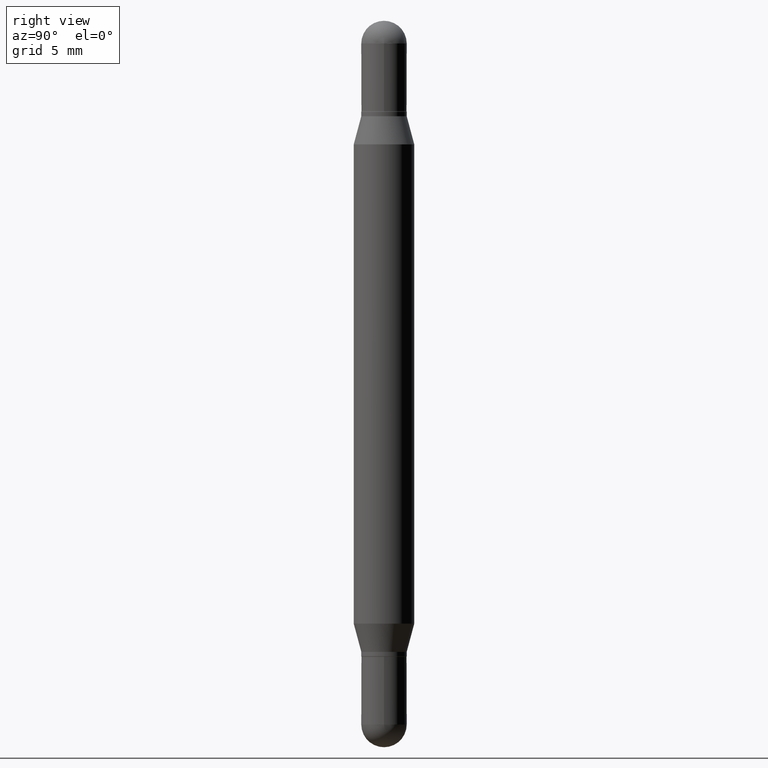
[diagram: clean part render]
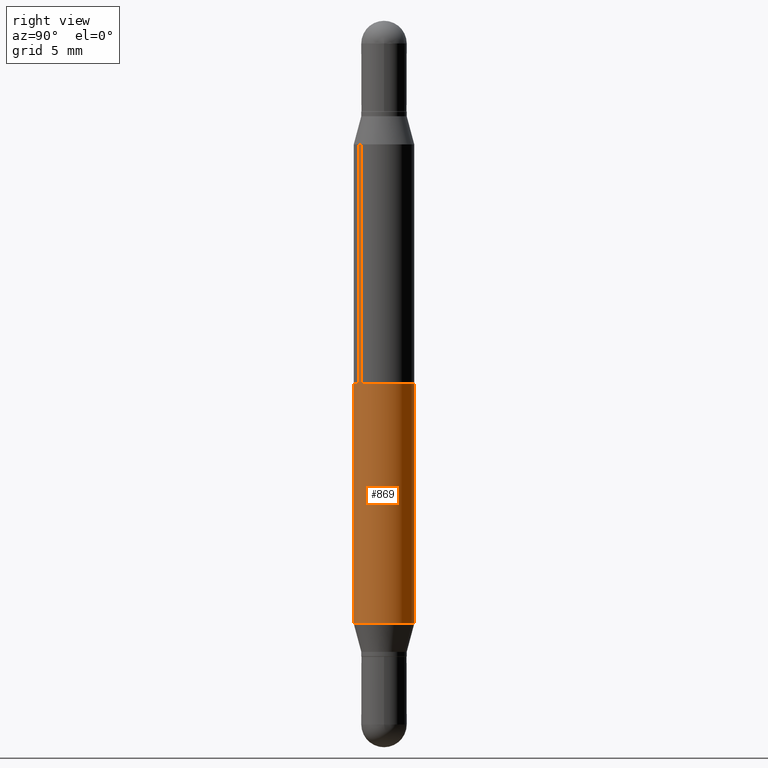
[diagram: same view with one face highlighted and labeled with its STEP entity id]
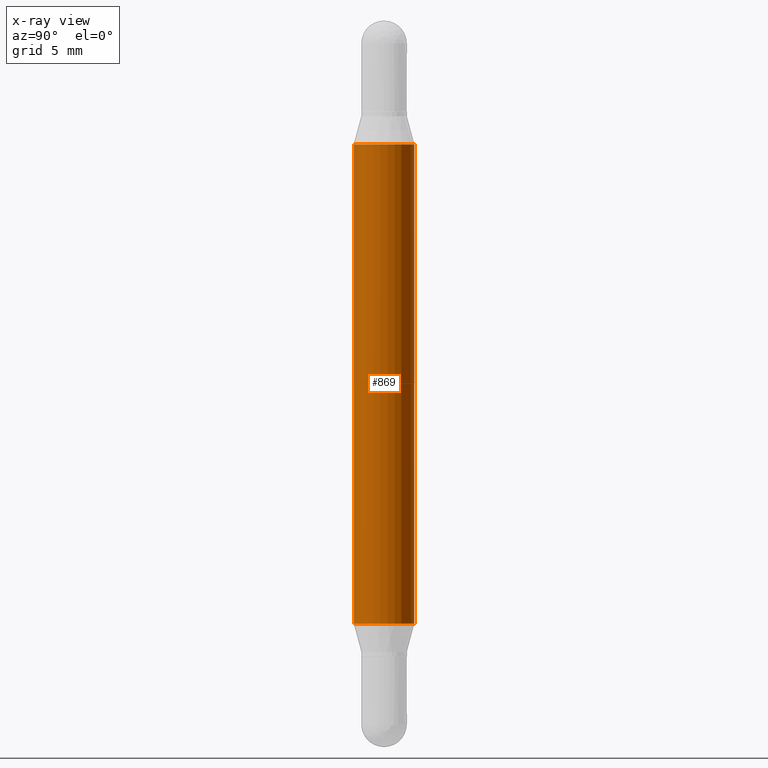
[diagram: x-ray of the same camera — body ghosted, the highlighted face saturated]
A machine part, right view. The second image highlights one B-rep face of the part: STEP entity #869.
The next image is the same camera in x-ray: the body ghosted, the highlighted face saturated — about 0% of this face is hidden behind the body in this view.
In plain terms, the highlighted cylindrical surface (edge-blend (fillet) strip) has radius 1.5875 mm, axis along (-0, -0, -1).
Its self-contained STEP definition (entity closure, byte-faithful):
#20 = VERTEX_POINT ( 'NONE', #654 ) ;
#70 = DIRECTION ( 'NONE',  ( -2.445401385119030572E-29, 3.491577889647178227E-15, 1.000000000000000000 ) ) ;
#104 = CIRCLE ( 'NONE', #1052, 0.06250000000000000000 ) ;
#129 = EDGE_CURVE ( 'NONE', #866, #789, #816, .T. ) ;
#164 = DIRECTION ( 'NONE',  ( -2.445401385119030292E-29, -3.479517916173796004E-15, -1.000000000000000000 ) ) ;
#200 = CARTESIAN_POINT ( 'NONE',  ( -4.364351673553612490E-16, -0.06250000000000090206, -0.2552199925980755957 ) ) ;
#216 = VECTOR ( 'NONE', #164, 39.37007874015748143 ) ;
#223 = EDGE_CURVE ( 'NONE', #866, #668, #1103, .T. ) ;
#242 = DIRECTION ( 'NONE',  ( -2.445401385119030292E-29, -3.479517916173796004E-15, -1.000000000000000000 ) ) ;
#293 = DIRECTION ( 'NONE',  ( -6.982962677686265922E-15, -1.000000000000000000, 4.370956789862821150E-15 ) ) ;
#368 = ORIENTED_EDGE ( 'NONE', *, *, #129, .F. ) ;
#380 = CYLINDRICAL_SURFACE ( 'NONE', #1053, 0.06250000000000000000 ) ;
#416 = DIRECTION ( 'NONE',  ( -6.982962677686265922E-15, -1.000000000000000000, 4.370956789862821150E-15 ) ) ;
#418 = LINE ( 'NONE', #501, #662 ) ;
#421 = DIRECTION ( 'NONE',  ( -6.982962677686265922E-15, -1.000000000000000000, 3.278217592397115862E-15 ) ) ;
#497 = CARTESIAN_POINT ( 'NONE',  ( 3.043986754269143826E-29, -4.346246351319410724E-15, -1.244780007401924626 ) ) ;
#501 = CARTESIAN_POINT ( 'NONE',  ( 4.287811248607206733E-16, 0.06249999999999477501, -1.500000000000000666 ) ) ;
#536 = FACE_OUTER_BOUND ( 'NONE', #1059, .T. ) ;
#551 = EDGE_CURVE ( 'NONE', #668, #20, #104, .T. ) ;
#569 = ORIENTED_EDGE ( 'NONE', *, *, #223, .T. ) ;
#654 = CARTESIAN_POINT ( 'NONE',  ( 4.287811248607390144E-16, 0.06249999999999565625, -1.244780007401924848 ) ) ;
#662 = VECTOR ( 'NONE', #242, 39.37007874015748143 ) ;
#668 = VERTEX_POINT ( 'NONE', #865 ) ;
#691 = CARTESIAN_POINT ( 'NONE',  ( 3.043986754269143826E-29, -8.970875169157855902E-16, -0.2552199925980758177 ) ) ;
#705 = ORIENTED_EDGE ( 'NONE', *, *, #995, .F. ) ;
#711 = CARTESIAN_POINT ( 'NONE',  ( 4.287811248607510938E-16, 0.06249999999999910488, -0.2552199925980759843 ) ) ;
#716 = CARTESIAN_POINT ( 'NONE',  ( 0.000000000000000000, -5.228321854365732350E-15, -1.500000000000000444 ) ) ;
#789 = VERTEX_POINT ( 'NONE', #711 ) ;
#816 = CIRCLE ( 'NONE', #980, 0.06250000000000000000 ) ;
#861 = CARTESIAN_POINT ( 'NONE',  ( -4.364351673553916201E-16, -0.06250000000000521805, -1.500000000000000222 ) ) ;
#865 = CARTESIAN_POINT ( 'NONE',  ( -4.364351673553611504E-16, -0.06250000000000434375, -1.244780007401924404 ) ) ;
#866 = VERTEX_POINT ( 'NONE', #200 ) ;
#869 = ADVANCED_FACE ( 'NONE', ( #536 ), #380, .T. ) ;
#959 = ORIENTED_EDGE ( 'NONE', *, *, #551, .T. ) ;
#980 = AXIS2_PLACEMENT_3D ( 'NONE', #691, #1028, #421 ) ;
#995 = EDGE_CURVE ( 'NONE', #789, #20, #418, .T. ) ;
#1028 = DIRECTION ( 'NONE',  ( 2.445401385119030572E-29, 3.479517916173795609E-15, 1.000000000000000000 ) ) ;
#1052 = AXIS2_PLACEMENT_3D ( 'NONE', #497, #70, #416 ) ;
#1053 = AXIS2_PLACEMENT_3D ( 'NONE', #716, #1062, #293 ) ;
#1059 = EDGE_LOOP ( 'NONE', ( #705, #368, #569, #959 ) ) ;
#1062 = DIRECTION ( 'NONE',  ( -2.445401385119030572E-29, -3.479517916173795609E-15, -1.000000000000000000 ) ) ;
#1103 = LINE ( 'NONE', #861, #216 ) ;